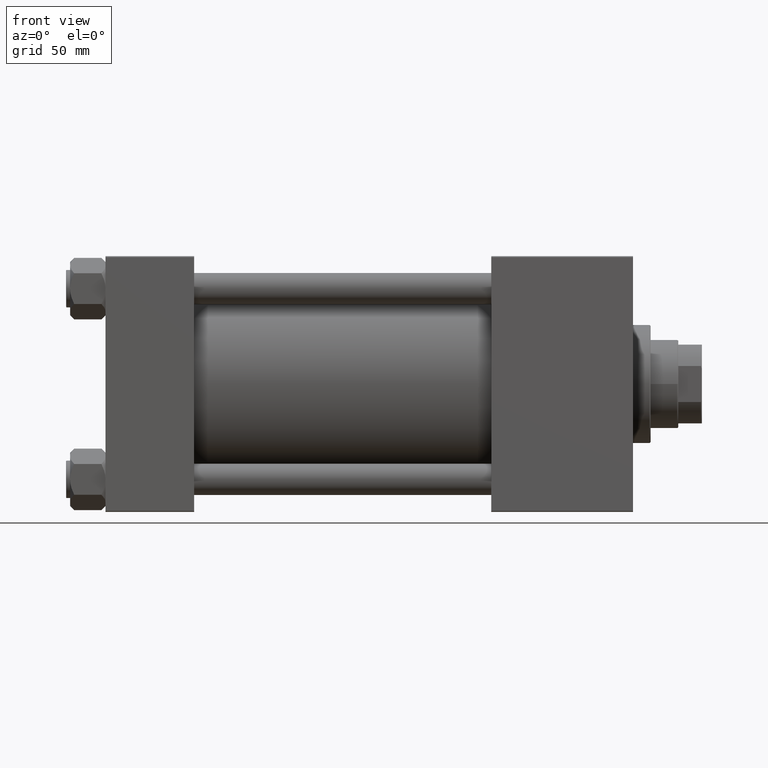
[diagram: clean part render]
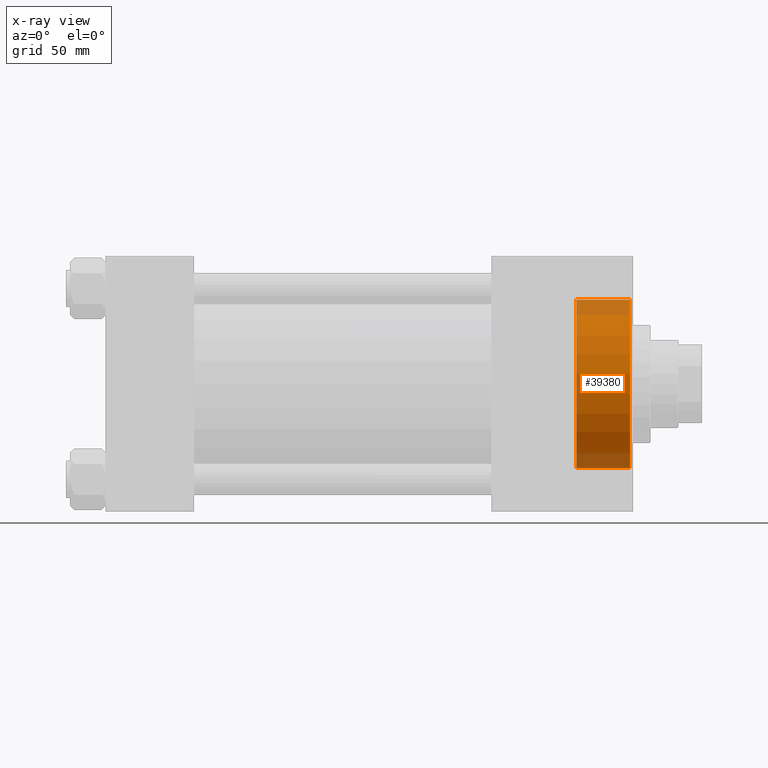
[diagram: x-ray — body ghosted, one internal face saturated and labeled with its STEP entity id]
A machine part, front view, then the same camera in x-ray: the body is ghosted and one INTERNAL B-rep face — a face not visible from any outside direction — is saturated and labeled: STEP entity #39380.
In plain terms, the highlighted cylindrical surface (partial cylindrical patch) has radius 42.75 mm, axis along (1, 0, 0).
Its self-contained STEP definition (entity closure, byte-faithful):
#443 = ORIENTED_EDGE ( 'NONE', *, *, #4959, .T. ) ;
#1320 = CARTESIAN_POINT ( 'NONE',  ( 266.4999999999999432, 5.235365066354935472E-15, 42.75000000000000000 ) ) ;
#3420 = CIRCLE ( 'NONE', #19840, 42.75000000000000000 ) ;
#3841 = DIRECTION ( 'NONE',  ( 0.000000000000000000, 0.000000000000000000, 1.000000000000000000 ) ) ;
#4959 = EDGE_CURVE ( 'NONE', #32272, #9183, #15085, .T. ) ;
#6621 = DIRECTION ( 'NONE',  ( 1.000000000000000000, -0.000000000000000000, -0.000000000000000000 ) ) ;
#7640 = LINE ( 'NONE', #38233, #40991 ) ;
#9183 = VERTEX_POINT ( 'NONE', #46444 ) ;
#9779 = DIRECTION ( 'NONE',  ( 0.000000000000000000, 0.000000000000000000, -1.000000000000000000 ) ) ;
#10813 = VERTEX_POINT ( 'NONE', #26529 ) ;
#11300 = DIRECTION ( 'NONE',  ( 1.000000000000000000, 0.000000000000000000, 0.000000000000000000 ) ) ;
#15085 = CIRCLE ( 'NONE', #41333, 42.75000000000000000 ) ;
#17759 = FACE_OUTER_BOUND ( 'NONE', #46592, .T. ) ;
#18507 = CARTESIAN_POINT ( 'NONE',  ( 239.3000000000000114, 0.000000000000000000, 0.000000000000000000 ) ) ;
#19840 = AXIS2_PLACEMENT_3D ( 'NONE', #18507, #34423, #26211 ) ;
#21516 = DIRECTION ( 'NONE',  ( 1.000000000000000000, -0.000000000000000000, -0.000000000000000000 ) ) ;
#26211 = DIRECTION ( 'NONE',  ( 0.000000000000000000, 0.000000000000000000, -1.000000000000000000 ) ) ;
#26249 = VERTEX_POINT ( 'NONE', #34144 ) ;
#26529 = CARTESIAN_POINT ( 'NONE',  ( 239.3000000000000114, 5.235365066354935472E-15, 42.75000000000000000 ) ) ;
#29469 = EDGE_CURVE ( 'NONE', #10813, #32272, #7640, .T. ) ;
#30519 = AXIS2_PLACEMENT_3D ( 'NONE', #41636, #45487, #9779 ) ;
#32204 = ORIENTED_EDGE ( 'NONE', *, *, #34252, .F. ) ;
#32272 = VERTEX_POINT ( 'NONE', #1320 ) ;
#33674 = CYLINDRICAL_SURFACE ( 'NONE', #30519, 42.75000000000000000 ) ;
#34144 = CARTESIAN_POINT ( 'NONE',  ( 239.3000000000000114, 0.000000000000000000, -42.75000000000000000 ) ) ;
#34252 = EDGE_CURVE ( 'NONE', #26249, #9183, #45393, .T. ) ;
#34423 = DIRECTION ( 'NONE',  ( 1.000000000000000000, 0.000000000000000000, 0.000000000000000000 ) ) ;
#37688 = CARTESIAN_POINT ( 'NONE',  ( 239.3000000000000114, 0.000000000000000000, -42.75000000000000000 ) ) ;
#38233 = CARTESIAN_POINT ( 'NONE',  ( 239.3000000000000114, 5.235365066354935472E-15, 42.75000000000000000 ) ) ;
#38790 = EDGE_CURVE ( 'NONE', #10813, #26249, #3420, .T. ) ;
#39380 = ADVANCED_FACE ( 'NONE', ( #17759 ), #33674, .F. ) ;
#40991 = VECTOR ( 'NONE', #6621, 1000.000000000000000 ) ;
#41333 = AXIS2_PLACEMENT_3D ( 'NONE', #46495, #11300, #3841 ) ;
#41636 = CARTESIAN_POINT ( 'NONE',  ( 239.3000000000000114, 0.000000000000000000, 0.000000000000000000 ) ) ;
#42437 = ORIENTED_EDGE ( 'NONE', *, *, #29469, .T. ) ;
#45393 = LINE ( 'NONE', #37688, #46861 ) ;
#45487 = DIRECTION ( 'NONE',  ( 1.000000000000000000, -0.000000000000000000, -0.000000000000000000 ) ) ;
#46444 = CARTESIAN_POINT ( 'NONE',  ( 266.4999999999999432, 0.000000000000000000, -42.75000000000000000 ) ) ;
#46495 = CARTESIAN_POINT ( 'NONE',  ( 266.4999999999999432, 0.000000000000000000, 0.000000000000000000 ) ) ;
#46592 = EDGE_LOOP ( 'NONE', ( #47177, #42437, #443, #32204 ) ) ;
#46861 = VECTOR ( 'NONE', #21516, 1000.000000000000000 ) ;
#47177 = ORIENTED_EDGE ( 'NONE', *, *, #38790, .F. ) ;